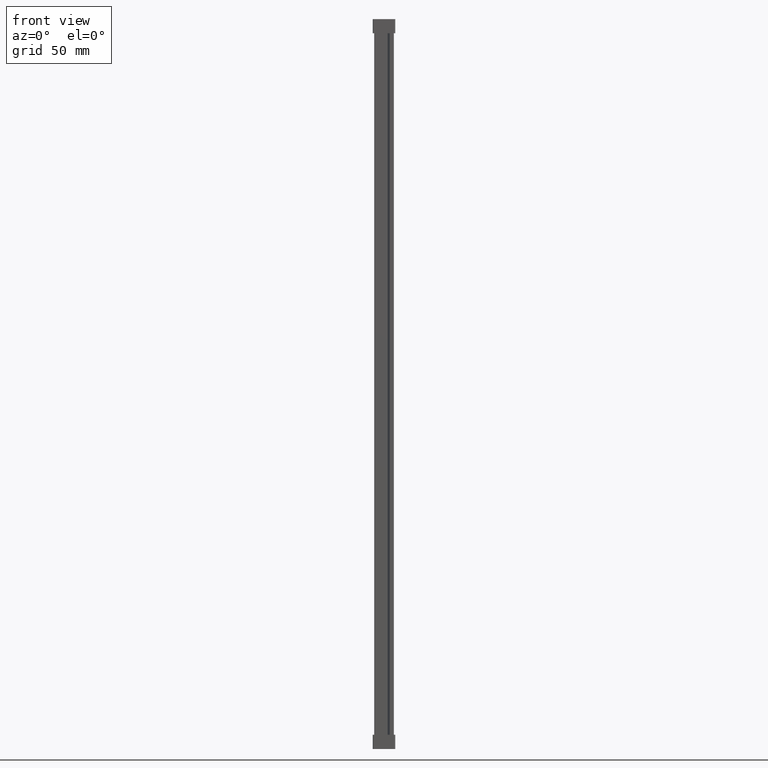
[diagram: clean part render]
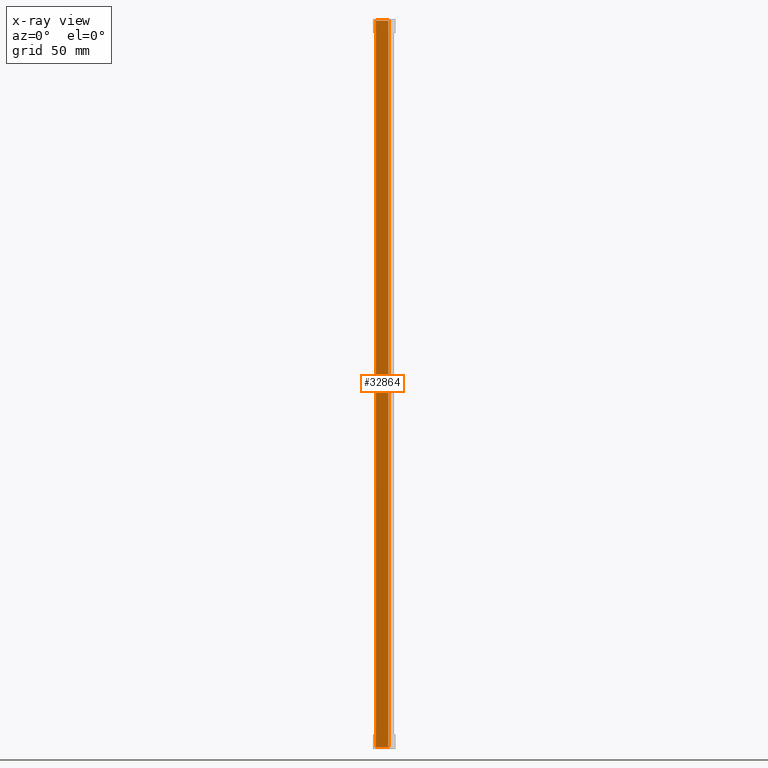
[diagram: x-ray — body ghosted, one internal face saturated and labeled with its STEP entity id]
A machine part, front view, then the same camera in x-ray: the body is ghosted and one INTERNAL B-rep face — a face not visible from any outside direction — is saturated and labeled: STEP entity #32864.
In plain terms, the highlighted planar face has unit normal (0, 1, 0).
Its self-contained STEP definition (entity closure, byte-faithful):
#685 = LINE ( 'NONE', #689, #44953 ) ;
#689 = CARTESIAN_POINT ( 'NONE',  ( -208.6787056034466200, 17.04999999999993300, 217.7999999999999800 ) ) ;
#703 = DIRECTION ( 'NONE',  ( -1.000000000000000000, 0.0000000000000000000, -0.0000000000000000000 ) ) ;
#730 = CARTESIAN_POINT ( 'NONE',  ( 9.667233284733546500, 17.04999999999993300, 219.0000000000000000 ) ) ;
#738 = LINE ( 'NONE', #730, #44975 ) ;
#744 = DIRECTION ( 'NONE',  ( -0.0000000000000000000, 0.0000000000000000000, -1.000000000000000000 ) ) ;
#916 = CARTESIAN_POINT ( 'NONE',  ( 0.6259999999999174000, 17.04999999999993300, 219.0000000000000000 ) ) ;
#938 = LINE ( 'NONE', #916, #45008 ) ;
#949 = DIRECTION ( 'NONE',  ( 0.0000000000000000000, -0.0000000000000000000, 1.000000000000000000 ) ) ;
#3011 = CARTESIAN_POINT ( 'NONE',  ( 6.525356090061943200, 17.04999999999993300, -313.8598036526214500 ) ) ;
#3018 = LINE ( 'NONE', #3011, #42495 ) ;
#3053 = DIRECTION ( 'NONE',  ( 1.000000000000000000, 0.0000000000000000000, -4.965472477636011600E-013 ) ) ;
#10827 = CARTESIAN_POINT ( 'NONE',  ( 9.667233284733546500, 17.04999999999993300, -313.8598036526207700 ) ) ;
#10851 = CARTESIAN_POINT ( 'NONE',  ( 0.6259999999999174000, 17.04999999999993300, -313.8598036526185500 ) ) ;
#14284 = EDGE_CURVE ( 'NONE', #41210, #41268, #685, .T. ) ;
#14343 = EDGE_CURVE ( 'NONE', #41210, #44667, #738, .T. ) ;
#14522 = EDGE_CURVE ( 'NONE', #44627, #41268, #938, .T. ) ;
#17665 = CARTESIAN_POINT ( 'NONE',  ( 9.667233284733544700, 17.04999999999993300, 217.7999999999999500 ) ) ;
#17784 = CARTESIAN_POINT ( 'NONE',  ( 0.6259999999999130700, 17.04999999999993300, 217.7999999999999500 ) ) ;
#23967 = DIRECTION ( 'NONE',  ( 0.0000000000000000000, 1.000000000000000000, 0.0000000000000000000 ) ) ;
#23979 = CARTESIAN_POINT ( 'NONE',  ( 6.525356090326534200, 17.04999999999993300, 219.0000000000000000 ) ) ;
#23993 = FACE_OUTER_BOUND ( 'NONE', #37501, .T. ) ;
#24002 = PLANE ( 'NONE',  #48261 ) ;
#24011 = DIRECTION ( 'NONE',  ( 0.0000000000000000000, -0.0000000000000000000, 1.000000000000000000 ) ) ;
#25263 = ORIENTED_EDGE ( 'NONE', *, *, #14284, .T. ) ;
#25269 = ORIENTED_EDGE ( 'NONE', *, *, #50337, .T. ) ;
#25271 = ORIENTED_EDGE ( 'NONE', *, *, #14343, .F. ) ;
#25294 = ORIENTED_EDGE ( 'NONE', *, *, #14522, .F. ) ;
#32864 = ADVANCED_FACE ( 'NONE', ( #23993 ), #24002, .F. ) ;
#37501 = EDGE_LOOP ( 'NONE', ( #25263, #25294, #25269, #25271 ) ) ;
#41210 = VERTEX_POINT ( 'NONE', #17665 ) ;
#41268 = VERTEX_POINT ( 'NONE', #17784 ) ;
#42495 = VECTOR ( 'NONE', #3053, 1000.000000000000000 ) ;
#44627 = VERTEX_POINT ( 'NONE', #10851 ) ;
#44667 = VERTEX_POINT ( 'NONE', #10827 ) ;
#44953 = VECTOR ( 'NONE', #703, 1000.000000000000000 ) ;
#44975 = VECTOR ( 'NONE', #744, 1000.000000000000000 ) ;
#45008 = VECTOR ( 'NONE', #949, 1000.000000000000000 ) ;
#48261 = AXIS2_PLACEMENT_3D ( 'NONE', #23979, #23967, #24011 ) ;
#50337 = EDGE_CURVE ( 'NONE', #44627, #44667, #3018, .T. ) ;